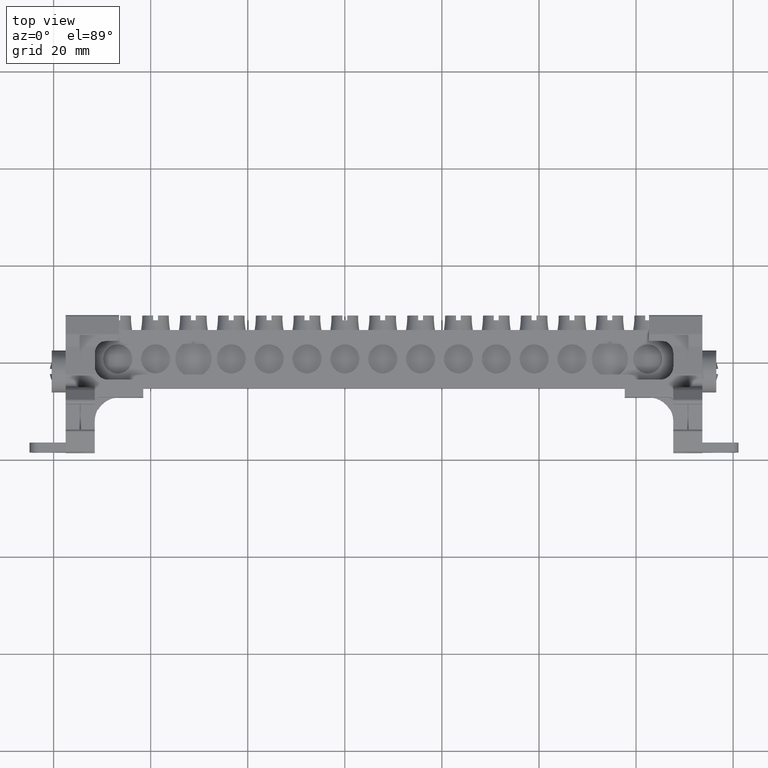
[diagram: clean part render]
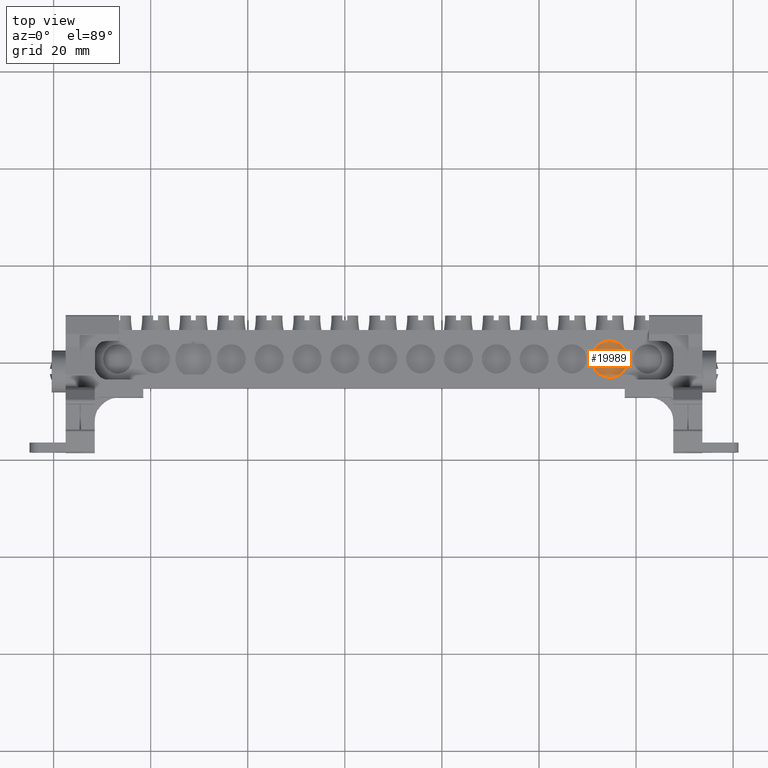
[diagram: same view with one face highlighted and labeled with its STEP entity id]
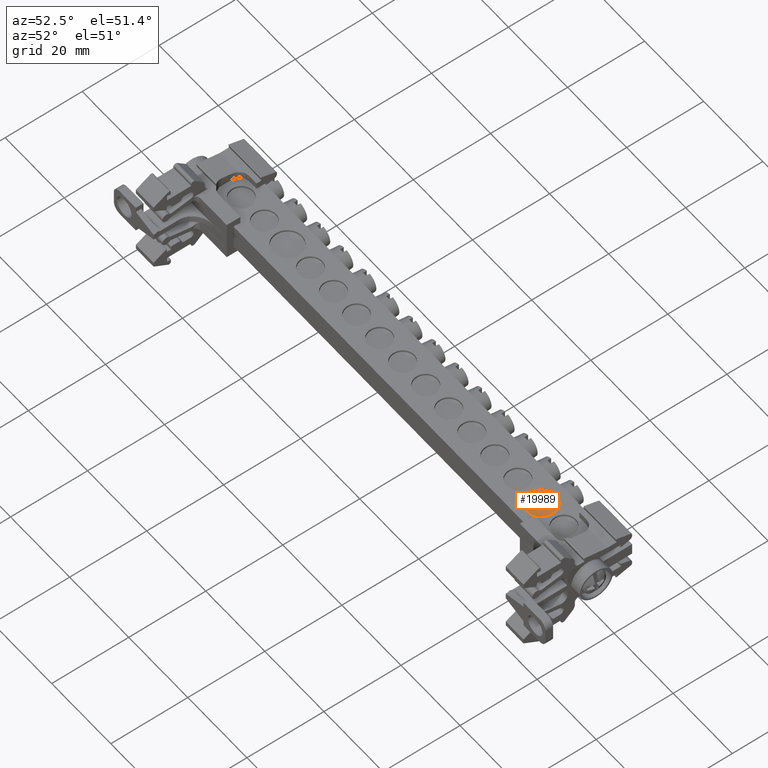
[diagram: same view with one face highlighted and labeled with its STEP entity id]
A machine part, top view. The second image highlights one B-rep face of the part: STEP entity #19989.
A second angle (auxiliary view) of the same face is appended — the face is thin or edge-on in the first view.
In plain terms, the highlighted planar face has unit normal (0, 0, -1).
Its self-contained STEP definition (entity closure, byte-faithful):
#1746 = DIRECTION ( 'NONE',  ( 1.000000000000000000, 0.0000000000000000000, 0.0000000000000000000 ) ) ;
#1760 = CARTESIAN_POINT ( 'NONE',  ( -45.40539649368639600, -39.46391012921964900, 98.75723811290720300 ) ) ;
#1784 = DIRECTION ( 'NONE',  ( 0.0000000000000000000, 0.0000000000000000000, 1.000000000000000000 ) ) ;
#3106 = CARTESIAN_POINT ( 'NONE',  ( -45.40539649368639600, -39.46391012921964900, 98.75723811290720300 ) ) ;
#3110 = DIRECTION ( 'NONE',  ( 1.000000000000000000, 0.0000000000000000000, 0.0000000000000000000 ) ) ;
#3123 = DIRECTION ( 'NONE',  ( 0.0000000000000000000, 0.0000000000000000000, 1.000000000000000000 ) ) ;
#12706 = EDGE_CURVE ( 'NONE', #21292, #21345, #25110, .T. ) ;
#12968 = EDGE_CURVE ( 'NONE', #21345, #21292, #25471, .T. ) ;
#14293 = CARTESIAN_POINT ( 'NONE',  ( -41.65539649368639600, -39.46391012921964900, 98.75723811290720300 ) ) ;
#14297 = CARTESIAN_POINT ( 'NONE',  ( -49.15539649368640300, -39.46391012921964900, 98.75723811290720300 ) ) ;
#18577 = ORIENTED_EDGE ( 'NONE', *, *, #12706, .T. ) ;
#18649 = ORIENTED_EDGE ( 'NONE', *, *, #12968, .T. ) ;
#19989 = ADVANCED_FACE ( 'NONE', ( #24389 ), #24420, .F. ) ;
#20446 = EDGE_LOOP ( 'NONE', ( #18577, #18649 ) ) ;
#21292 = VERTEX_POINT ( 'NONE', #14293 ) ;
#21345 = VERTEX_POINT ( 'NONE', #14297 ) ;
#24382 = DIRECTION ( 'NONE',  ( 0.0000000000000000000, 0.0000000000000000000, -1.000000000000000000 ) ) ;
#24386 = CARTESIAN_POINT ( 'NONE',  ( -30.80539649368639800, -44.96391012921960600, 98.75723811290720300 ) ) ;
#24389 = FACE_OUTER_BOUND ( 'NONE', #20446, .T. ) ;
#24395 = DIRECTION ( 'NONE',  ( -1.000000000000000000, 0.0000000000000000000, -0.0000000000000000000 ) ) ;
#24420 = PLANE ( 'NONE',  #25994 ) ;
#25110 = CIRCLE ( 'NONE', #25145, 3.750000000000003600 ) ;
#25145 = AXIS2_PLACEMENT_3D ( 'NONE', #3106, #3123, #3110 ) ;
#25471 = CIRCLE ( 'NONE', #25472, 3.750000000000003600 ) ;
#25472 = AXIS2_PLACEMENT_3D ( 'NONE', #1760, #1784, #1746 ) ;
#25994 = AXIS2_PLACEMENT_3D ( 'NONE', #24386, #24382, #24395 ) ;